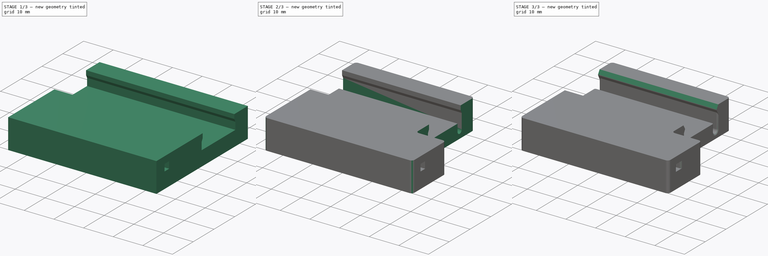
[diagram: build sequence overview — one tinted view per stage of 3, left to right]
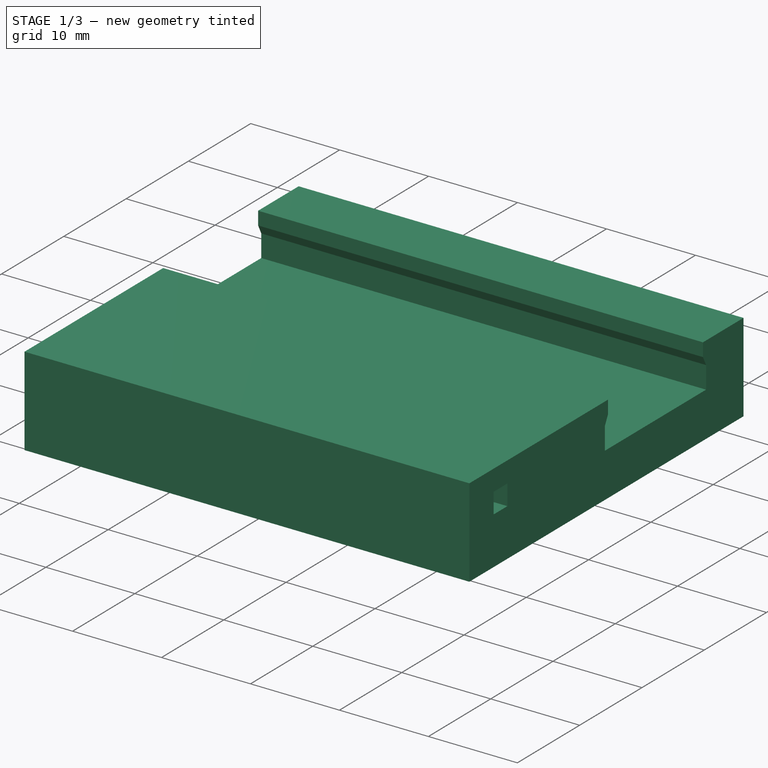
[diagram: stage 1 of 3 — iso view after this stage's code; geometry added in this stage tinted green]
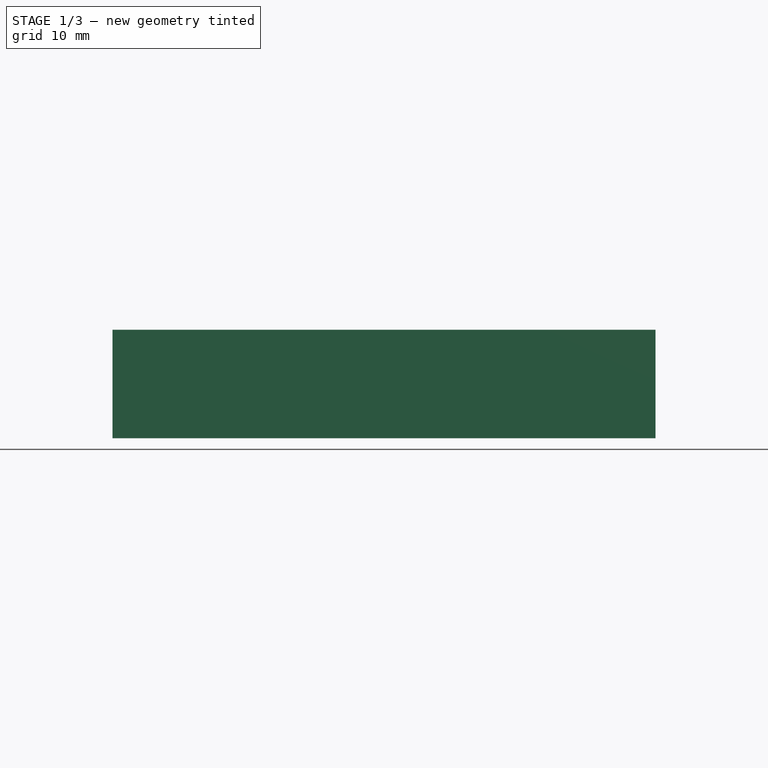
[diagram: stage 1 of 3 — front view after this stage's code; geometry added in this stage tinted green]
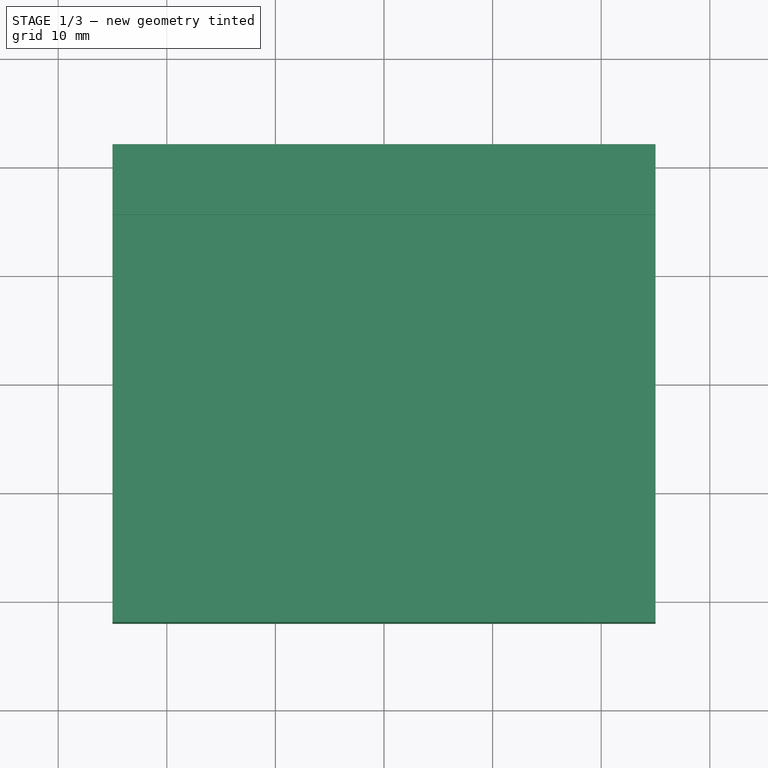
[diagram: stage 1 of 3 — top view after this stage's code; geometry added in this stage tinted green]
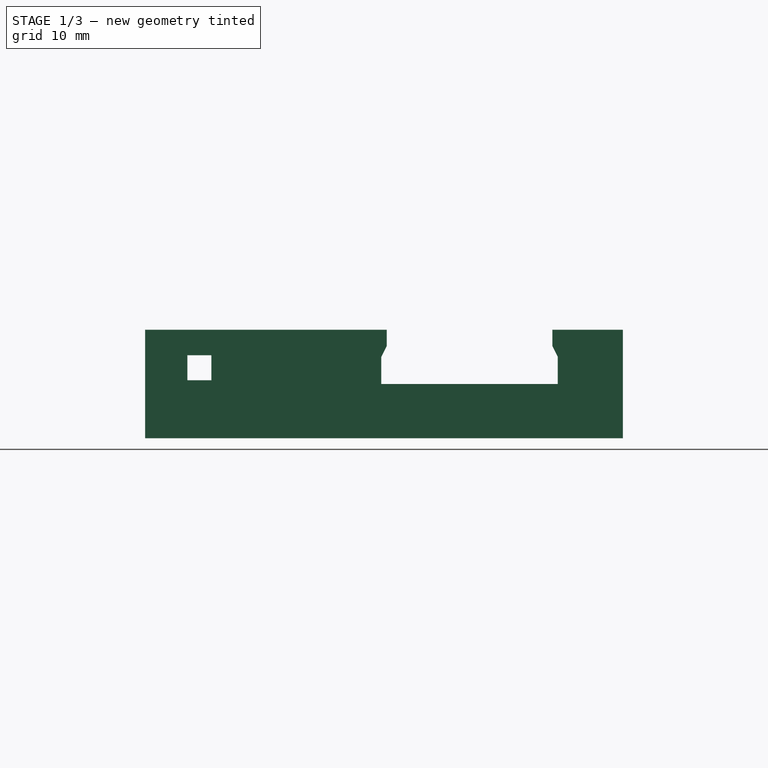
[diagram: stage 1 of 3 — right view after this stage's code; geometry added in this stage tinted green]
FCSTD DOCUMENT  (FreeCAD 1.1R41365 (Git))
Label: rod_guide
License: All rights reserved
LicenseURL: https://en.wikipedia.org/wiki/All_rights_reserved
objects: Sketcher::SketchObject×4, PartDesign::Pocket×3, PartDesign::Fillet×2, App::Point×1, PartDesign::Pad×1, PartDesign::Chamfer×1, PartDesign::Body×1
note: 30 computed .brp shape members not serialized (recipe doc carries the construction recipe); baked Part::Feature solids carry a one-line shape summary decoded from their .brp

FEATURE [App::Point] Origin001
  Role = Origin
FEATURE [Sketcher::SketchObject] Sketch
  ArcFitTolerance = 1e-06
  AttachmentSupport = -> [Origin]
  ExternalTypes = [0]
  FullyConstrained = true
  MakeInternals = false
  MapMode = 5
  sketch-geometry (5):
    g0: LineSegment StartX=-25 StartY=-22 StartZ=0 EndX=25 EndY=-22 EndZ=0
    g1: LineSegment StartX=25 StartY=-22 StartZ=0 EndX=25 EndY=22 EndZ=0
    g2: LineSegment StartX=25 StartY=22 StartZ=0 EndX=-25 EndY=22 EndZ=0
    g3: LineSegment StartX=-25 StartY=22 StartZ=0 EndX=-25 EndY=-22 EndZ=0
    g4: GeomPoint [constr] X=0 Y=0 Z=0
  constraints (12):
    c: Coincident(g0,g1)
    c: Coincident(g1,g2)
    c: Coincident(g2,g3)
    c: Coincident(g3,g0)
    c: Horizontal(g0)
    c: Horizontal(g2)
    c: Vertical(g1)
    c: Vertical(g3)
    c: Symmetric(g2,g0,g4)
    c: Coincident(g4,g-1)
    c: DistanceY(g1,g1) = 44
    c: DistanceX(g0,g0) = 50
FEATURE [PartDesign::Pad] Pad
  Direction = (0,0,1)
  Length = 10
  Length2 = 10
  Midplane = true
  Profile = -> Sketch
  ReferenceAxis = -> Sketch [N_Axis]
  Refine = true
  Suppressed = false
  Type = 0
FEATURE [Sketcher::SketchObject] Sketch001
  ArcFitTolerance = 1e-06
  AttachmentSupport = -> [Pad]
  ExternalGeometry = -> [Pad]
  ExternalTypes = [0,0]
  FullyConstrained = true
  MakeInternals = false
  MapMode = 5
  Placement = pos=(25,0,0) rot=(0.57735,0.57735,0.57735;2.0944rad)
  sketch-geometry (15):
    g0: LineSegment StartX=0.25 StartY=5 StartZ=0 EndX=0.25 EndY=3.5 EndZ=0
    g1: LineSegment StartX=0.25 StartY=3.5 StartZ=0 EndX=-0.25 EndY=2.5 EndZ=0
    g2: LineSegment StartX=-0.25 StartY=2.5 StartZ=0 EndX=-0.25 EndY=0 EndZ=0
    g3: LineSegment StartX=-0.25 StartY=0 StartZ=0 EndX=16 EndY=0 EndZ=0
    g4: GeomPoint X=-4.312e-13 Y=3 Z=0
    g5: LineSegment StartX=-18.1 StartY=0.35 StartZ=0 EndX=-15.9 EndY=0.35 EndZ=0
    g6: LineSegment StartX=-15.9 StartY=0.35 StartZ=0 EndX=-15.9 EndY=2.65 EndZ=0
    g7: LineSegment StartX=-15.9 StartY=2.65 StartZ=0 EndX=-18.1 EndY=2.65 EndZ=0
    g8: LineSegment StartX=-18.1 StartY=2.65 StartZ=0 EndX=-18.1 EndY=0.35 EndZ=0
    g9: GeomPoint [constr] X=-17 Y=1.5 Z=0
    g10: LineSegment StartX=0.25 StartY=5 StartZ=0 EndX=15.5 EndY=5 EndZ=0
    g11: LineSegment StartX=15.5 StartY=5 StartZ=0 EndX=15.5 EndY=3.5 EndZ=0
    g12: LineSegment StartX=15.5 StartY=3.5 StartZ=0 EndX=16 EndY=2.5 EndZ=0
    g13: LineSegment StartX=16 StartY=2.5 StartZ=0 EndX=16 EndY=0 EndZ=0
    g14: GeomPoint X=15.75 Y=3 Z=0
  constraints (41):
    c: Vertical(g0)
    c: Coincident(g1,g0)
    c: Coincident(g2,g1)
    c: Coincident(g3,g2)
    c: Vertical(g2)
    c: Distance(g2,g2) = 2.5
    c: DistanceY(g0,g0) = 1.5
    c: PointOnObject(g4,g1)
    c: Coincident(g5,g6)
    c: Coincident(g6,g7)
    c: Coincident(g7,g8)
    c: Coincident(g8,g5)
    c: Horizontal(g5)
    c: Horizontal(g7)
    c: Vertical(g6)
    c: Vertical(g8)
    c: Symmetric(g7,g5,g9)
    c: DistanceX(g7,g7) = 2.2
    c: DistanceY(g6,g6) = 2.3
    c: DistanceX(g9,g4) = 17
    c: Horizontal(g3)
    c: Distance(g4,g3) = 3
    c: Distance(g9,g3) = 1.5
    c: Coincident(g10,g0)
    c: Horizontal(g10)
    c: PointOnObject(g10,g-4)
    c: Coincident(g11,g10)
    c: Vertical(g11)
    c: Coincident(g12,g11)
    c: Coincident(g13,g12)
    c: Vertical(g13)
    c: Coincident(g3,g13)
    c: Equal(g0,g11)
    c: Equal(g13,g2)
    c: Distance(g10,g3) = 5
    c: Distance(g13,g11) = 0.5
    c: Distance(g2,g0) = 0.5
    c: PointOnObject(g14,g12)
    c: Horizontal(g14,g4)
    c: DistanceX(g4,g14) = 15.75
    c: Distance(g-3,g13) = 6
FEATURE [PartDesign::Pocket] Pocket
  BaseFeature = -> Pad
  Direction = (-1,0,0)
  Length = 5
  Length2 = 5
  Profile = -> Sketch001
  ReferenceAxis = -> Sketch001 [N_Axis]
  Refine = true
  Suppressed = false
  Type = 1
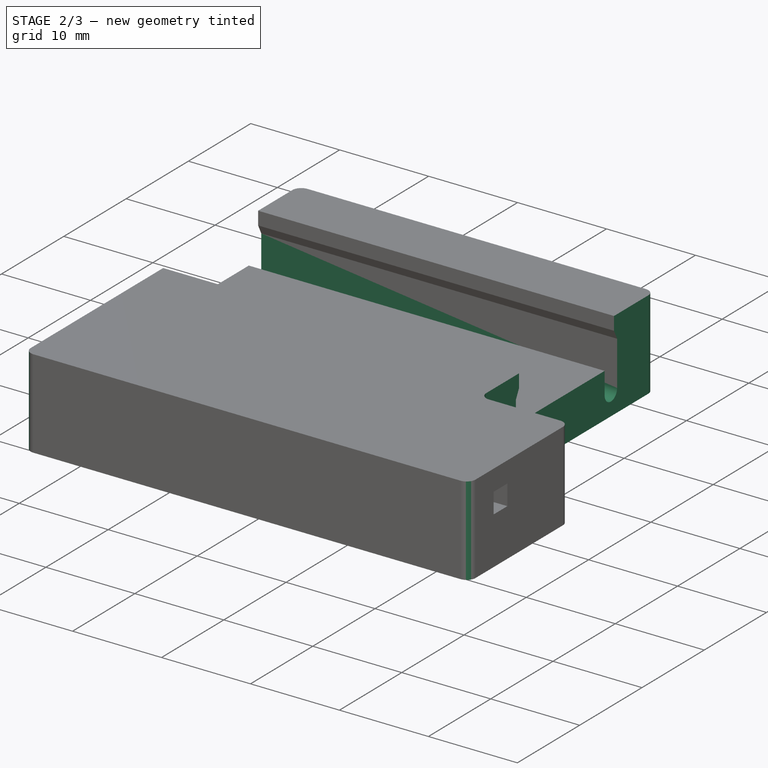
[diagram: stage 2 of 3 — iso view after this stage's code; geometry added in this stage tinted green]
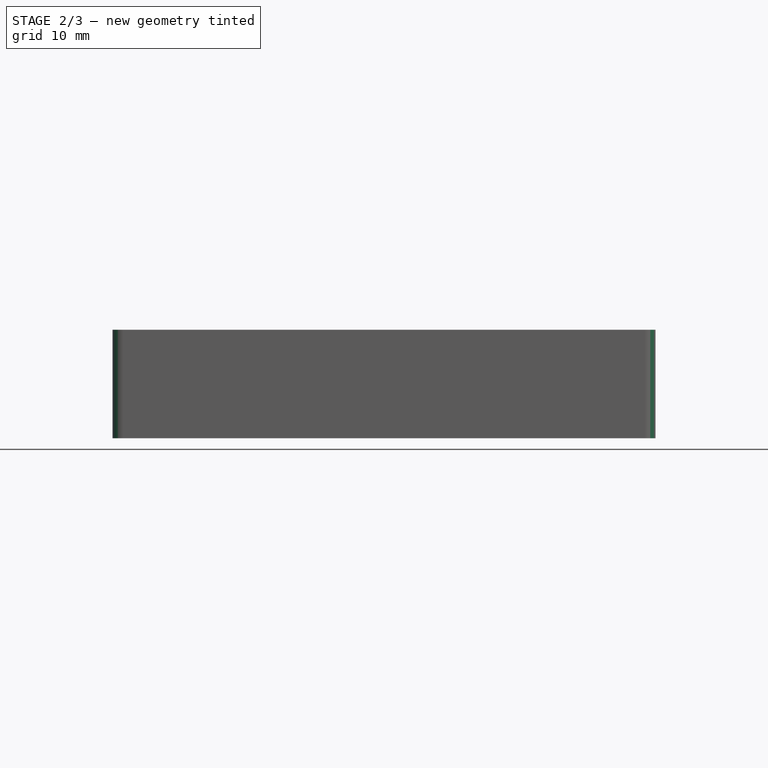
[diagram: stage 2 of 3 — front view after this stage's code; geometry added in this stage tinted green]
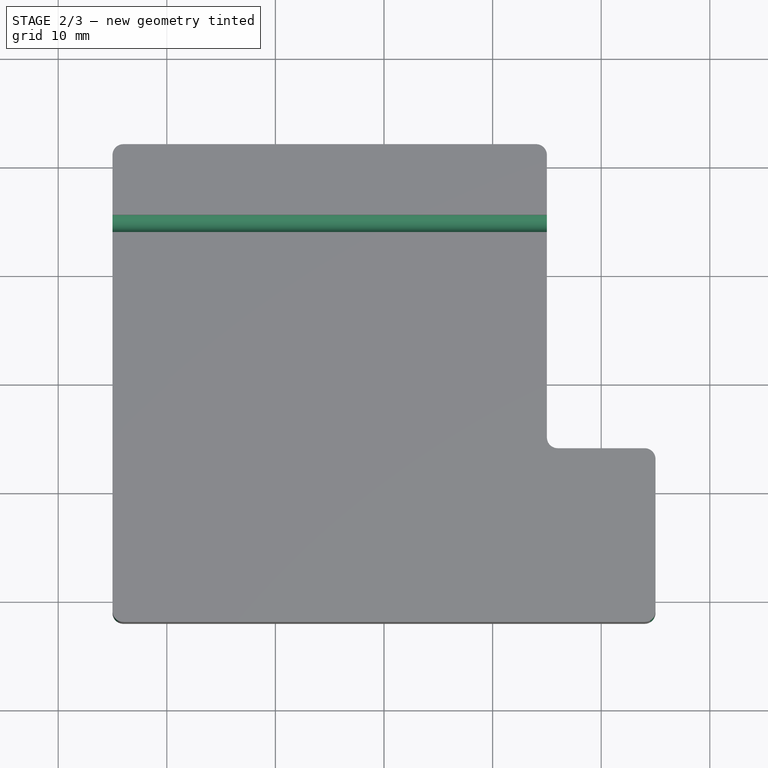
[diagram: stage 2 of 3 — top view after this stage's code; geometry added in this stage tinted green]
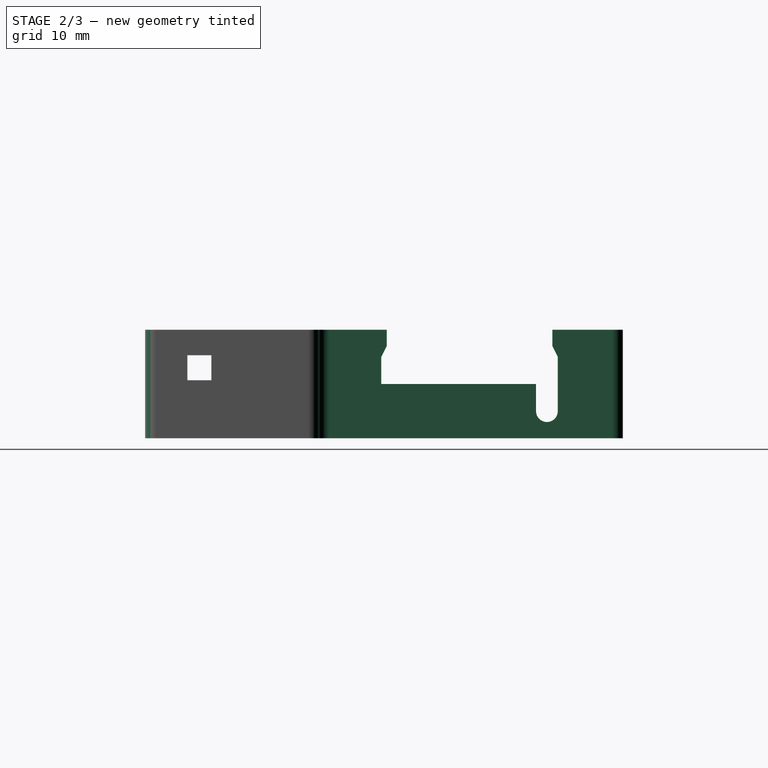
[diagram: stage 2 of 3 — right view after this stage's code; geometry added in this stage tinted green]
FEATURE [Sketcher::SketchObject] Sketch002
  ArcFitTolerance = 1e-06
  AttachmentSupport = -> [Pocket]
  ExternalGeometry = -> [Pocket]
  ExternalTypes = [0]
  FullyConstrained = true
  MakeInternals = false
  MapMode = 5
  Placement = pos=(0,0,-5) rot=(1,0,0;3.14159rad)
  sketch-geometry (4):
    g0: LineSegment StartX=25 StartY=-22 StartZ=0 EndX=25 EndY=6 EndZ=0
    g1: LineSegment StartX=25 StartY=6 StartZ=0 EndX=15 EndY=6 EndZ=0
    g2: LineSegment StartX=15 StartY=6 StartZ=0 EndX=15 EndY=-22 EndZ=0
    g3: LineSegment StartX=15 StartY=-22 StartZ=0 EndX=25 EndY=-22 EndZ=0
  constraints (11):
    c: Coincident(g0,g1)
    c: Coincident(g1,g2)
    c: Coincident(g2,g3)
    c: Coincident(g3,g0)
    c: Vertical(g0)
    c: Vertical(g2)
    c: Horizontal(g1)
    c: Horizontal(g3)
    c: Coincident(g0,g-3)
    c: DistanceY(g0,g0) = 28
    c: DistanceX(g3,g3) = 10
FEATURE [Sketcher::SketchObject] Sketch003
  ArcFitTolerance = 1e-06
  AttachmentSupport = -> [Pocket]
  ExternalGeometry = -> [Pocket]
  ExternalTypes = [0]
  FullyConstrained = true
  MakeInternals = false
  MapMode = 5
  Placement = pos=(25,0,0) rot=(0.57735,0.57735,0.57735;2.0944rad)
  sketch-geometry (4):
    g0: ArcOfCircle CenterX=15 CenterY=0 CenterZ=0 NormalX=0 NormalY=0 NormalZ=1 AngleXU=0 Radius=1 StartAngle=0 EndAngle=3.14159
    g1: ArcOfCircle CenterX=15 CenterY=-2.5 CenterZ=0 NormalX=0 NormalY=0 NormalZ=1 AngleXU=0 Radius=1 StartAngle=3.14159 EndAngle=6.28319
    g2: LineSegment StartX=16 StartY=0 StartZ=0 EndX=16 EndY=-2.5 EndZ=0
    g3: LineSegment StartX=14 StartY=1e-16 StartZ=0 EndX=14 EndY=-2.5 EndZ=0
  constraints (9):
    c: Tangent(g0,g2) = 1.5708
    c: Tangent(g0,g3) = -1.5708
    c: Tangent(g1,g2) = 1.5708
    c: Tangent(g1,g3) = -1.5708
    c: Equal(g0,g1)
    c: PointOnObject(g0,g-1)
    c: Coincident(g0,g-3)
    c: Radius(g0) = 1
    c: DistanceY(g2,g2) = 2.5
FEATURE [PartDesign::Pocket] Pocket002
  BaseFeature = -> Pocket
  Direction = (-1,0,0)
  Length = 5
  Length2 = 5
  Profile = -> Sketch003
  ReferenceAxis = -> Sketch003 [N_Axis]
  Refine = true
  Suppressed = false
  Type = 1
FEATURE [PartDesign::Pocket] Pocket001
  BaseFeature = -> Pocket002
  Direction = (0,0,1)
  Length = 5
  Length2 = 5
  Profile = -> Sketch002
  ReferenceAxis = -> Sketch002 [N_Axis]
  Refine = true
  Suppressed = false
  Type = 1
FEATURE [PartDesign::Fillet] Fillet
  Base = -> Pocket001 [Edge2,Edge23,Edge1,Edge55,Edge60,Edge17]
  BaseFeature = -> Pocket001
  Radius = 1
  Refine = true
  SupportTransform = false
  Suppressed = false
  UseAllEdges = false
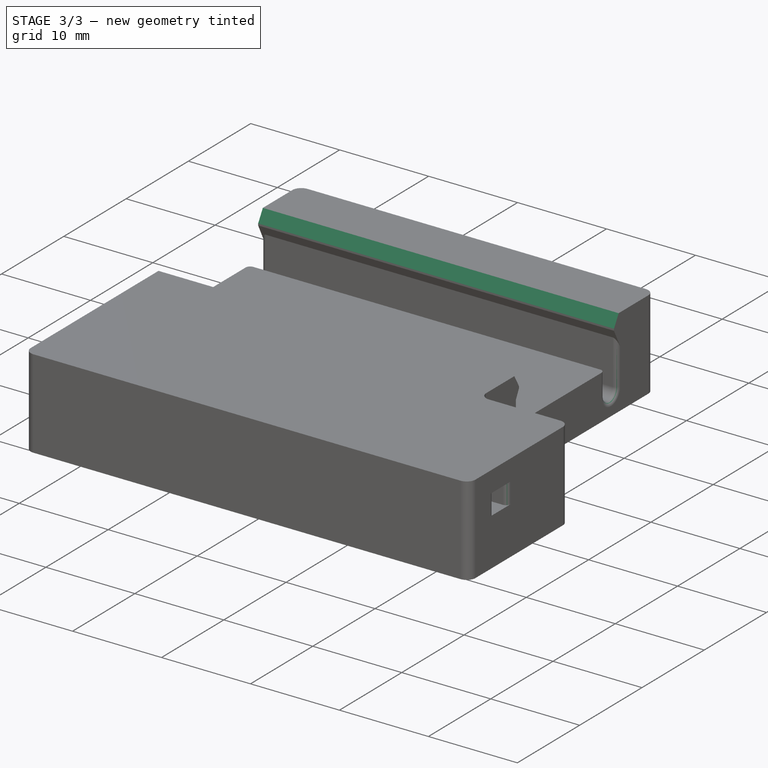
[diagram: stage 3 of 3 — iso view after this stage's code; geometry added in this stage tinted green]
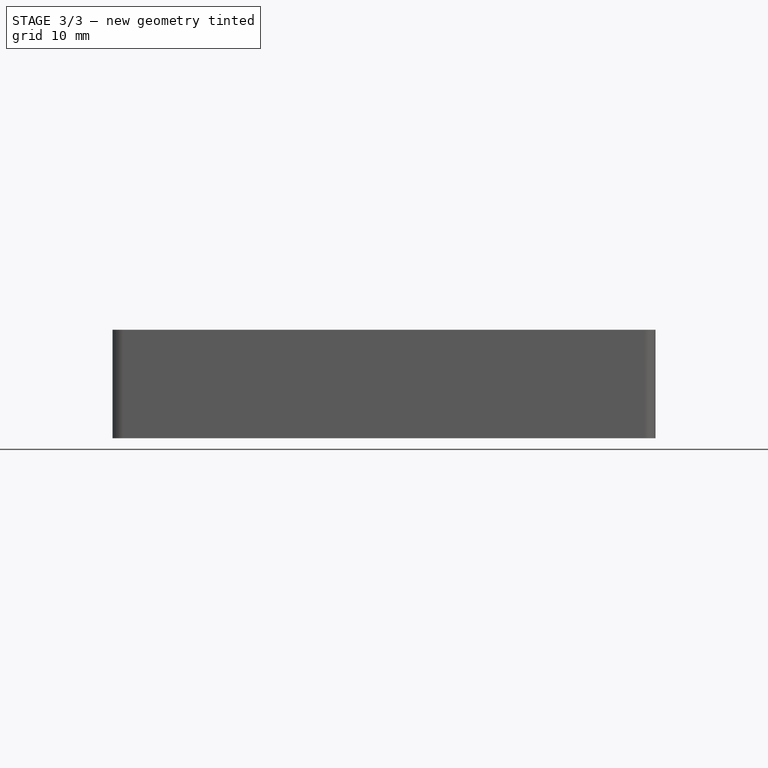
[diagram: stage 3 of 3 — front view after this stage's code; geometry added in this stage tinted green]
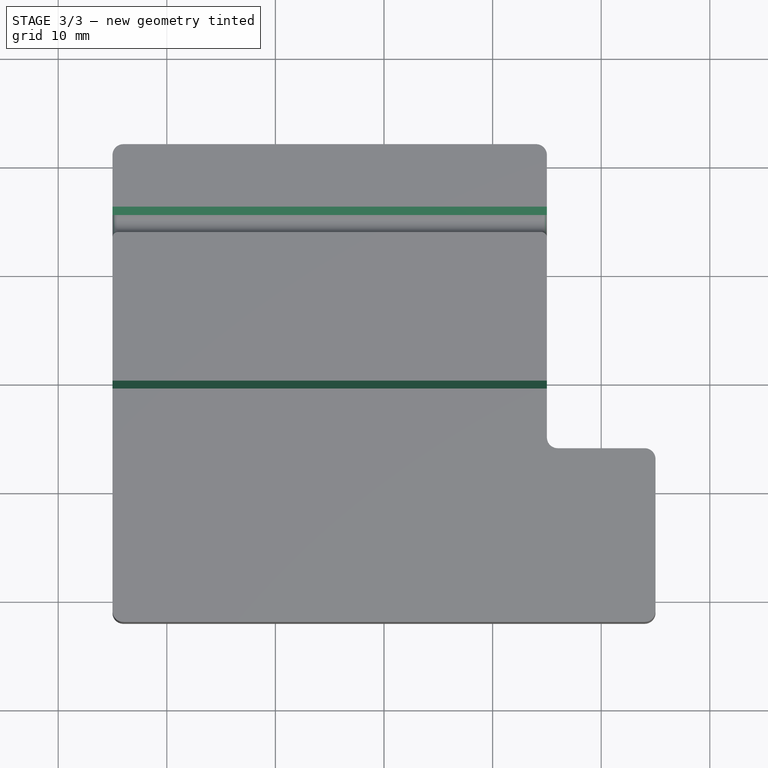
[diagram: stage 3 of 3 — top view after this stage's code; geometry added in this stage tinted green]
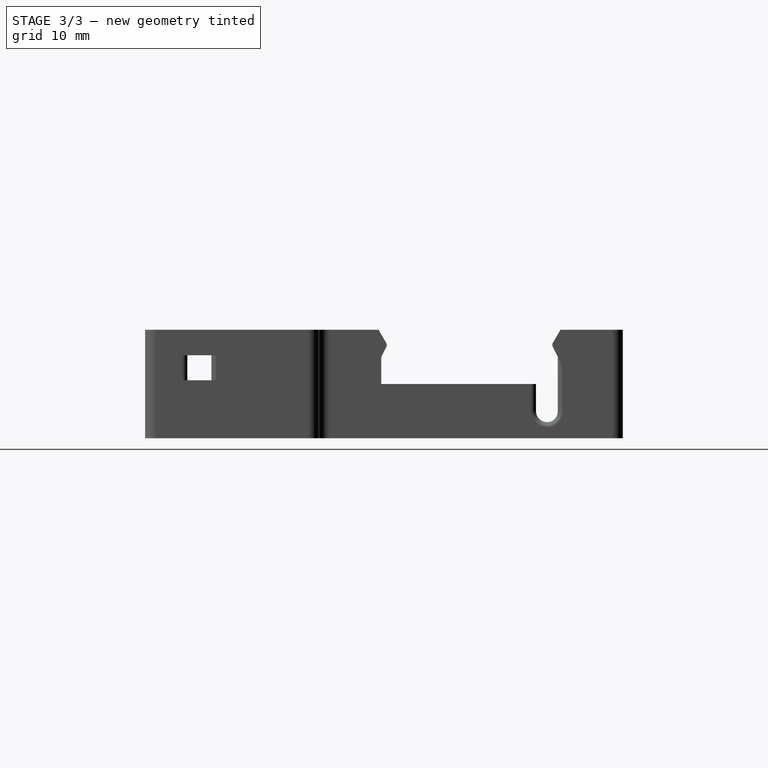
[diagram: stage 3 of 3 — right view after this stage's code; geometry added in this stage tinted green]
FEATURE [PartDesign::Fillet] Fillet001
  Base = -> Fillet [Edge40,Edge39,Edge63,Edge60,Edge58,Edge37]
  BaseFeature = -> Fillet
  Radius = 0.5
  Refine = true
  SupportTransform = false
  Suppressed = false
  UseAllEdges = false
FEATURE [PartDesign::Chamfer] Chamfer
  Angle = 30
  Base = -> Fillet001 [Edge57,Edge40]
  BaseFeature = -> Fillet001
  ChamferType = 2
  FlipDirection = false
  Refine = true
  Size = 1.3
  Size2 = 1
  SupportTransform = false
  Suppressed = false
  UseAllEdges = false
FEATURE [PartDesign::Body] Body  label="rod_guide"
  AllowCompound = false
  Group = -> [Sketch,Pad,Sketch001,Pocket,Sketch002,Sketch003,Pocket002,Pocket001,Fillet,Fillet001,Chamfer]
  Origin = -> Origin
  Tip = -> Chamfer
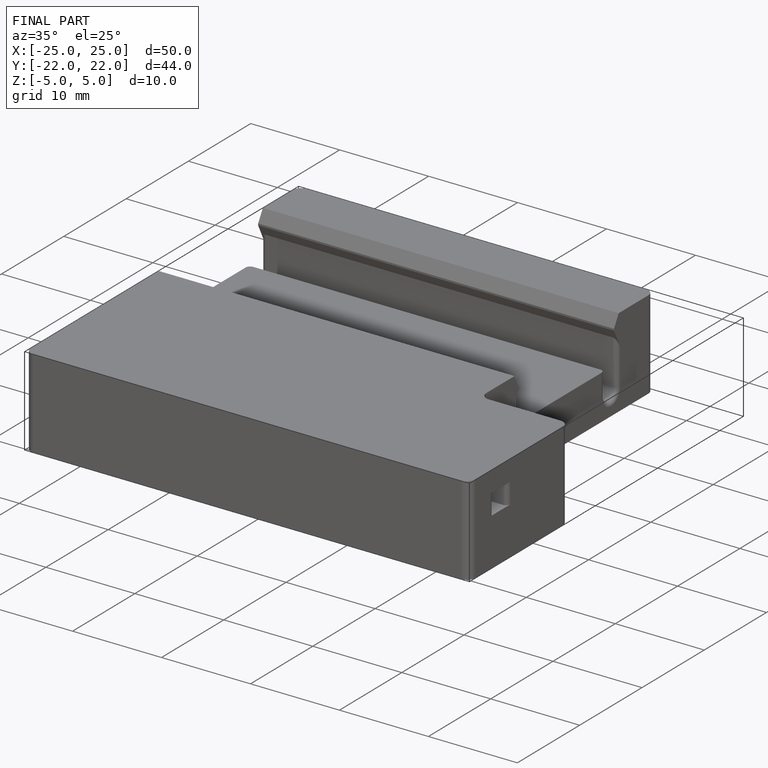
[diagram: finished part — iso view with bounding-box wireframe]
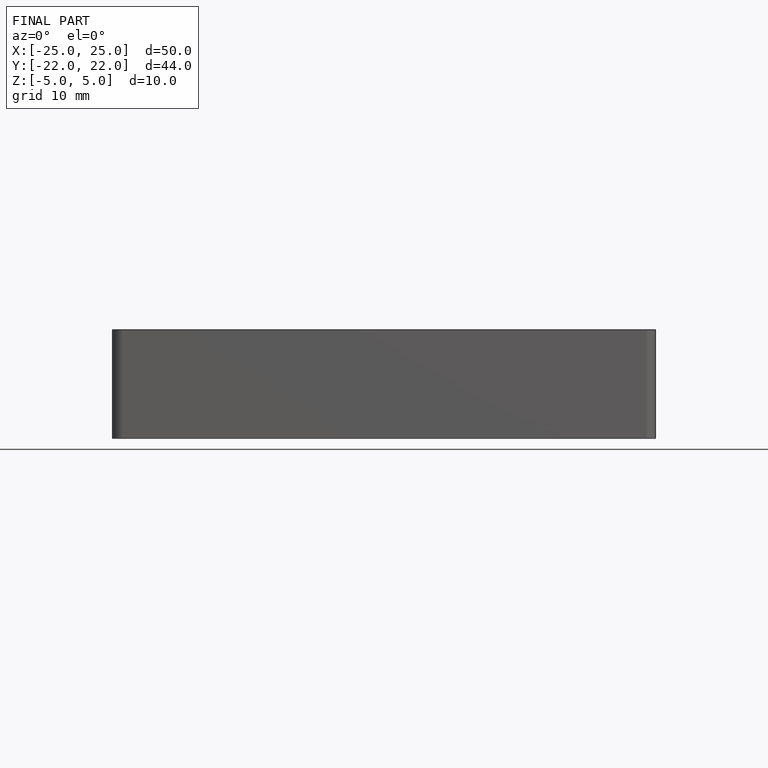
[diagram: finished part — front view with bounding-box wireframe]
